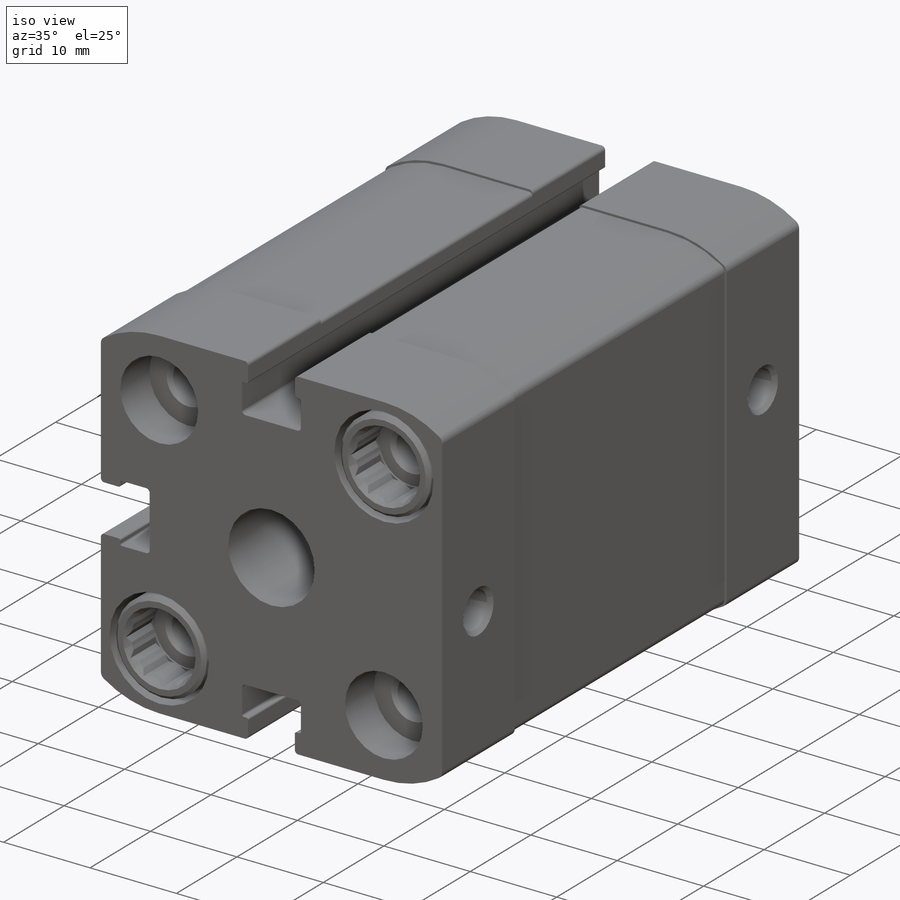
[diagram: iso view]
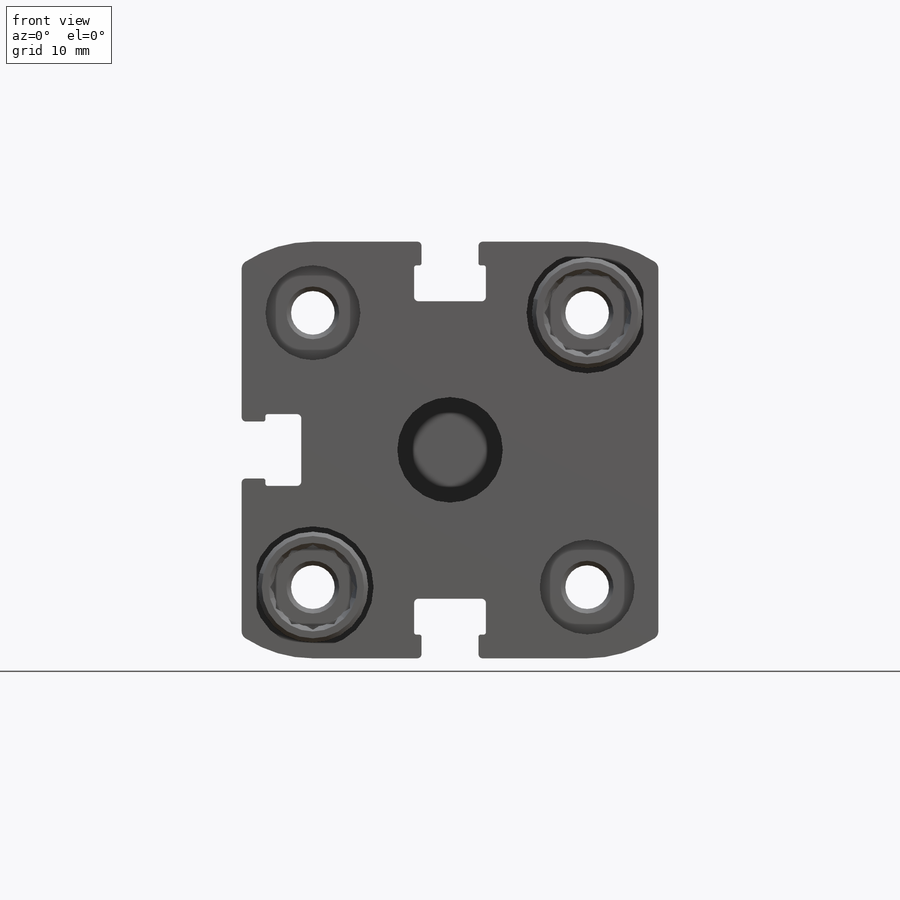
[diagram: front view]
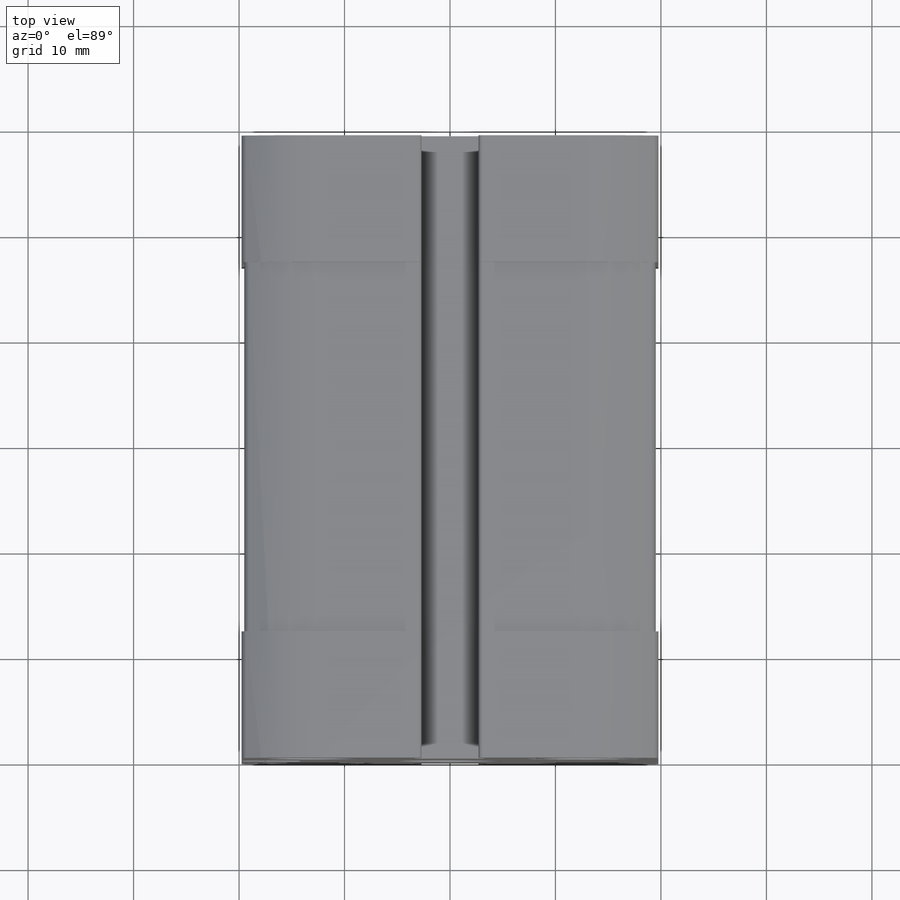
[diagram: top view]
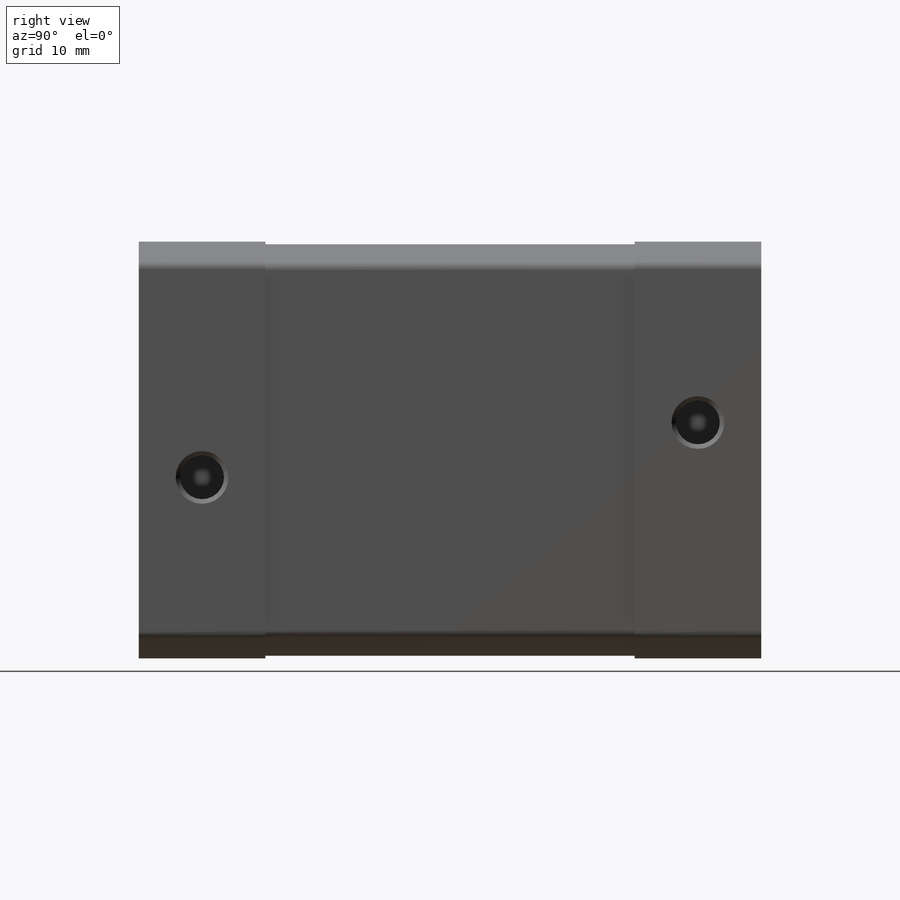
[diagram: right view]
SOLIDWORKS PART (.sldprt)
format: sldprt  version: not decoded by parser v0  size: 1,059,328 bytes
history: native  units: mm
features: sketch x50, plane x45, hole x10, cut_revolve x8, cut_extrude x5, thread x5, revolve x2, material x1, extrude x1 (+37 scaffold rows collapsed)
feature tree (164):
  scaffold x37  (default folders/planes/origin — collapsed)
  material  "Material <nicht angegeben>"
  plane  "Ebene vorne"
  plane  "Ebene oben"
  plane  "Ebene rechts"
  sketch  "Skizze1"
  extrude  "Aufsatz-Linear austragen1"  Depth=59mm
  plane  "Ebene1"  Offset=12mm
  sketch  "Skizze2"
  cut_extrude  "Schnitt-Linear austragen1"  Depth=35mm
  plane  "Ebene2"  Offset=35mm
  plane  "Ebene3"  Offset=2.6mm
  plane  "Ebene4"  Offset=2.6mm
  hole  "Bohrung1"  Diameter=4.134mm Depth=11mm
  sketch  "Skizze4"
  sketch  "Skizze3"  dims[Durchmesser=4.134mm Tiefe=11.0mm Senkwinkel1=90.0deg Senkdurchmesser3=5.0mm]
  thread  "Gewindedarstellung1"  Diameter=5.5mm  [1 undecoded]
  plane  "Ebene5"  Offset=19.75mm
  sketch  "Skizze6"
  sketch  "Skizze5"  dims[Durchmesser=4.134mm Tiefe=11.0mm Senkwinkel1=90.0deg Senkdurchmesser3=5.0mm]
  hole  "Gewindedarstellung2"  Diameter=5.5mm
  sketch  "Skizze7"
  cut_revolve  "Schnitt-Rotation1"  Angle=360deg
  sketch  "Skizze9"
  sketch  "Skizze8"  dims[Durchmesser=9.0mm Tiefe=2.1mm]
  plane  "Ebene6"  Offset=13mm
  plane  "Ebene7"  Offset=13mm
  sketch  "Skizze11"
  sketch  "Skizze10"  dims[Durchmesser=7.0mm Tiefe=19.5mm Senkdurchmesser1=11.5mm Senktiefe1=6.5mm]
  sketch  "Skizze12"
  revolve  "Rotation1"  [1 undecoded]
  hole  "Gewindedarstellung3"  Diameter=14.9mm Depth=19.5mm
  sketch  "Skizze14"
  sketch  "Skizze13"  dims[Durchmesser=7.0mm Tiefe=19.5mm Senkdurchmesser1=11.5mm Senktiefe1=6.5mm]
  sketch  "Skizze15"
  cut_revolve  "Rotation2"  [1 undecoded]
  hole  "Gewindedarstellung4"  Diameter=49.167mm
  hole  "Gewindedarstellung7"  Diameter=7.2mm Depth=19.5mm
  sketch  "Skizze17"
  sketch  "Skizze16"  dims[Durchmesser=7.0mm Tiefe=19.5mm Senkdurchmesser1=11.5mm Senktiefe1=6.5mm]
  sketch  "Skizze19"
  sketch  "Skizze18"  dims[Durchmesser=7.0mm Tiefe=19.5mm Senkdurchmesser1=11.5mm Senktiefe1=6.5mm]
  sketch  "Skizze20"
  cut_revolve  "Rotation3"  [1 undecoded]
  hole  "Gewindedarstellung5"  Diameter=14.9mm
  sketch  "Skizze21"
  cut_revolve  "Rotation4"  [1 undecoded]
  hole  "Gewindedarstellung6"  Diameter=49.167mm
  hole  "Gewindedarstellung9"  Diameter=7.2mm
  sketch  "Skizze22"
  thread  "Schnitt-Rotation2"  [2 undecoded]
  sketch  "Skizze23"
  cut_revolve  "Rotation5"  Angle=360deg
  sketch  "Skizze25"
  sketch  "Skizze24"  dims[Durchmesser=5.0mm Tiefe=27.5mm]
  sketch  "Skizze26"
  thread  "Schnitt-Rotation3"  [2 undecoded]
  hole  "Gewindedarstellung8"  Diameter=7.2mm
  sketch  "Skizze27"
  cut_revolve  "Rotation6"  Angle=360deg
  sketch  "Skizze29"
  sketch  "Skizze28"  dims[Durchmesser=5.0mm Tiefe=27.5mm]
  sketch  "Skizze30"
  thread  "Schnitt-Rotation4"  [2 undecoded]
  sketch  "Skizze31"
  cut_revolve  "Rotation7"  Angle=360deg
  sketch  "Skizze33"
  sketch  "Skizze32"  dims[Durchmesser=5.0mm Tiefe=27.5mm]
  sketch  "Skizze34"
  thread  "Schnitt-Rotation5"  [2 undecoded]
  hole  "Gewindedarstellung10"  Diameter=7.2mm
  sketch  "Skizze35"
  cut_revolve  "Rotation8"  Angle=360deg
  sketch  "Skizze37"
  sketch  "Skizze36"  dims[Durchmesser=5.0mm Tiefe=27.5mm]
  sketch  "Skizze38"
  cut_extrude  "Schnitt-Linear austragen2"  Depth=4.4mm
  sketch  "Skizze39"
  cut_extrude  "Schnitt-Linear austragen3"  Depth=4.4mm
  plane  "Ebene8"  Offset=59mm
  sketch  "Skizze40"
  cut_extrude  "Schnitt-Linear austragen4"  Depth=4.4mm
  sketch  "Skizze41"
  cut_extrude  "Schnitt-Linear austragen5"  Depth=4.4mm
  plane  "Ebene9"  Offset=47mm
  plane  "Ebene10"  Offset=19.75mm
  plane  "Ebene11"  Offset=59mm
  plane  "Ebene12"  Offset=0mm
  plane  "Ebene13"  Offset=0mm
  plane  "Ebene14"  Offset=0mm
  plane  "Ebene15"  Offset=19.75mm
  revolve  "Ordner1___EndTag___"  [1 undecoded]
  plane  "CYLINDER XY"
  plane  "CYLINDER XZ"
  plane  "CYLINDER YZ"
  sketch  "CYLINDER"
  plane  "FDT_FRONT XY"
  plane  "FDT_FRONT XZ"
  plane  "FDT_FRONT YZ"
  sketch  "FDT_FRONT"
  plane  "FDT_QSFRONT XY"
  plane  "FDT_QSFRONT XZ"
  plane  "FDT_QSFRONT YZ"
  sketch  "FDT_QSFRONT"
  plane  "FDT_QSREAR XY"
  plane  "FDT_QSREAR XZ"
  plane  "FDT_QSREAR YZ"
  sketch  "FDT_QSREAR"
  plane  "FDT_REAR XY"
  plane  "FDT_REAR XZ"
  plane  "FDT_REAR YZ"
  sketch  "FDT_REAR"
  plane  "FDT_SLOT3.1 XY"
  plane  "FDT_SLOT3.1 XZ"
  plane  "FDT_SLOT3.1 YZ"
  sketch  "FDT_SLOT3.1"
  plane  "FDT_SLOT5.1 XY"
  plane  "FDT_SLOT5.1 XZ"
  plane  "FDT_SLOT5.1 YZ"
  sketch  "FDT_SLOT5.1"
  plane  "FDT_SLOT7.1 XY"
  plane  "FDT_SLOT7.1 XZ"
  plane  "FDT_SLOT7.1 YZ"
  sketch  "FDT_SLOT7.1"
  plane  "TO_DUMMY XY"
  plane  "TO_DUMMY XZ"
  plane  "TO_DUMMY YZ"
  sketch  "TO_DUMMY"
decode coverage: 33 of 81 modeling features carry decoded parameters
note: 14 parameter values undecoded
summary: no parameter record found for 9 features
note: suppression state not decoded; provenance and decode notes live in map.json
